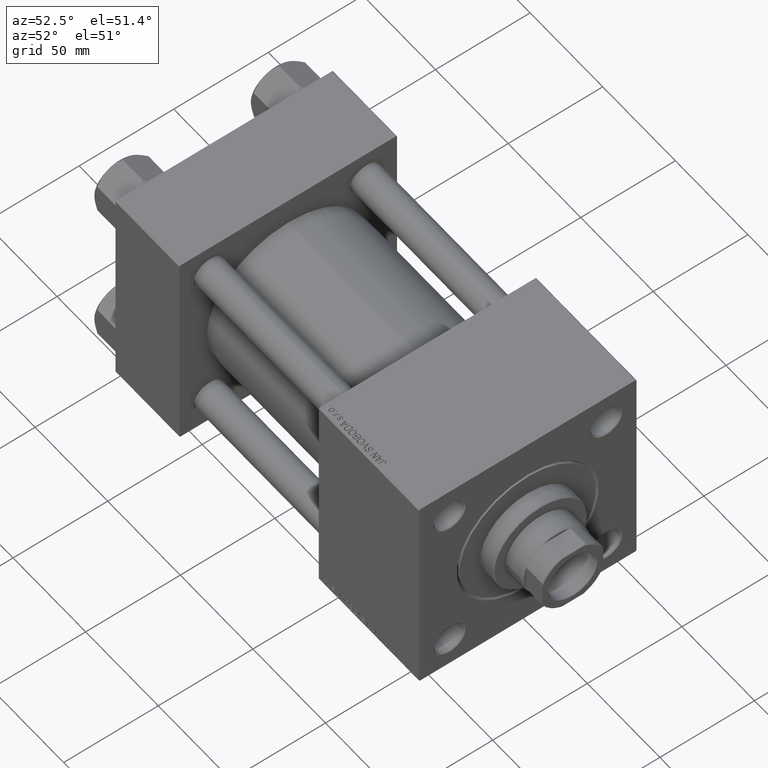
[diagram: clean part render]
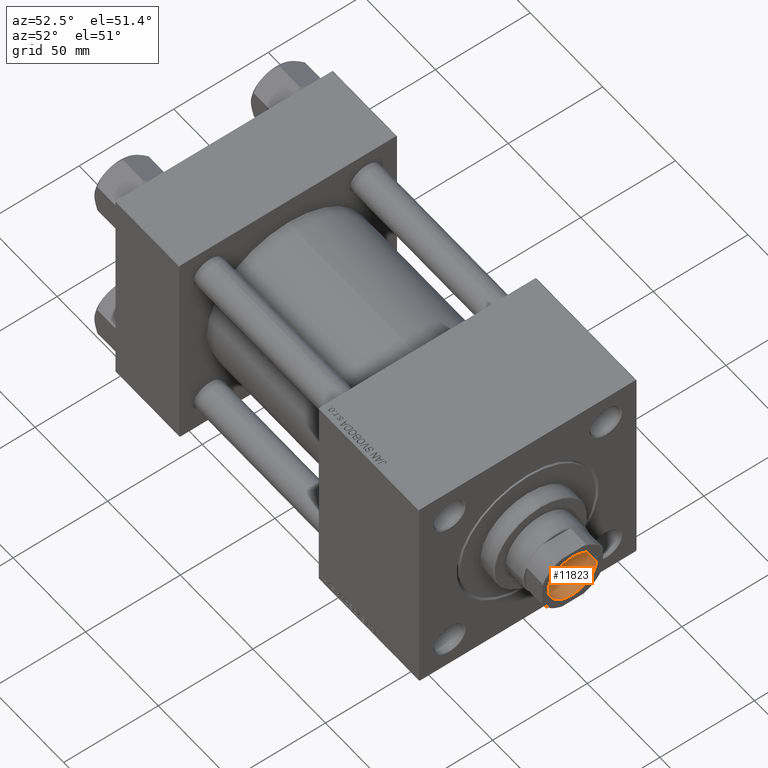
[diagram: same view with one face highlighted and labeled with its STEP entity id]
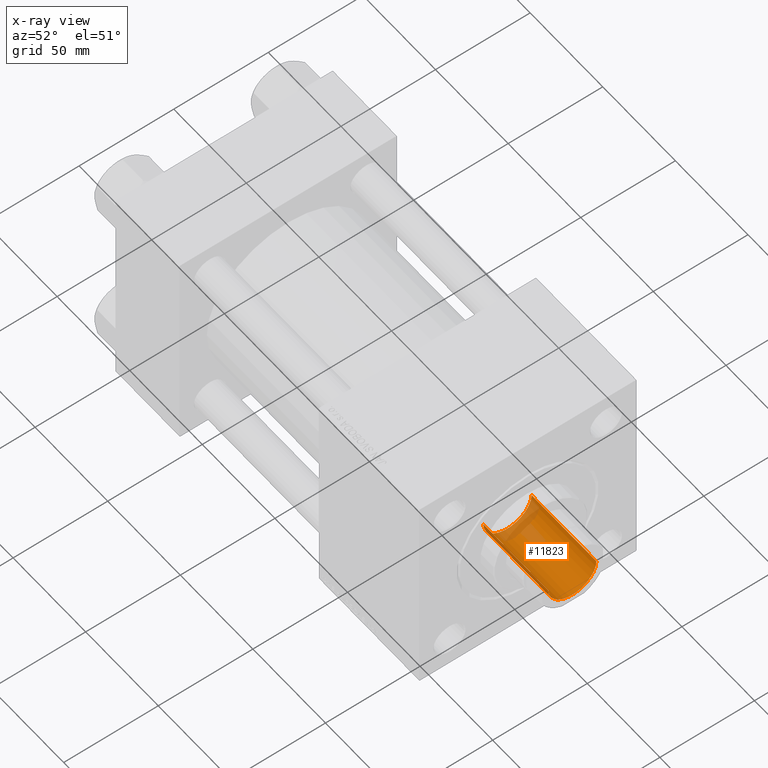
[diagram: x-ray of the same camera — body ghosted, the highlighted face saturated]
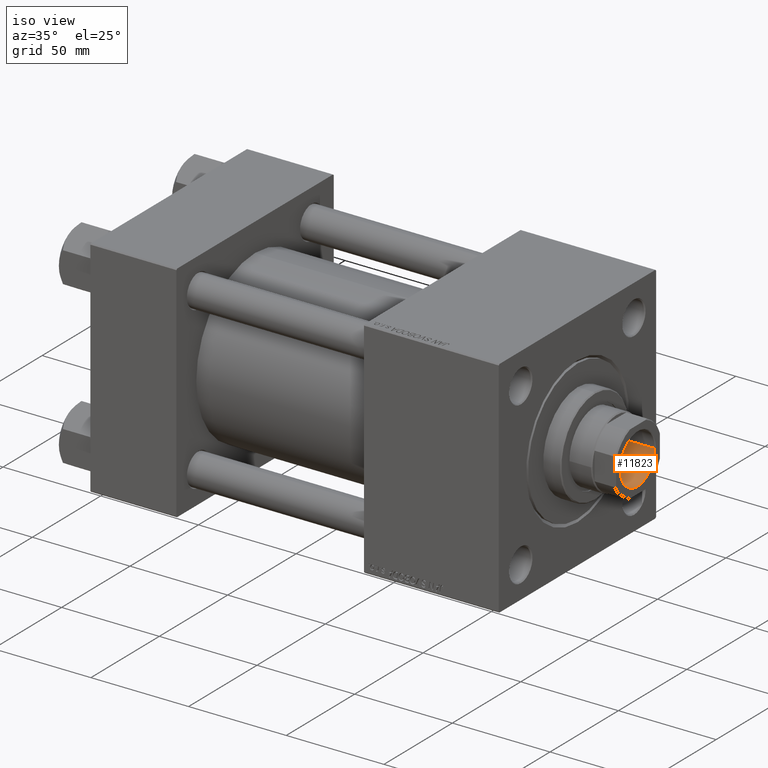
[diagram: same view with one face highlighted and labeled with its STEP entity id]
A machine part, auxiliary view. The second image highlights one B-rep face of the part: STEP entity #11823.
The next image is the same camera in x-ray: the body ghosted, the highlighted face saturated — about 16% of this face is hidden behind the body in this view.
A second angle (iso view) of the same face is appended — the face is thin or edge-on in the first view.
In plain terms, the highlighted cylindrical surface (edge-blend (fillet) strip) has radius 12.75 mm, axis along (1, 0, 0).
Its self-contained STEP definition (entity closure, byte-faithful):
#827 = CARTESIAN_POINT ( 'NONE',  ( 0.000000000000000000, 0.000000000000000000, 196.0000000000000000 ) ) ;
#1256 = EDGE_CURVE ( 'NONE', #29813, #37192, #6083, .T. ) ;
#1853 = DIRECTION ( 'NONE',  ( 1.000000000000000000, 0.000000000000000000, 0.000000000000000000 ) ) ;
#2782 = VECTOR ( 'NONE', #15731, 1000.000000000000000 ) ;
#3105 = DIRECTION ( 'NONE',  ( -0.000000000000000000, -0.000000000000000000, 1.000000000000000000 ) ) ;
#3683 = LINE ( 'NONE', #45923, #2782 ) ;
#3744 = AXIS2_PLACEMENT_3D ( 'NONE', #827, #32358, #1853 ) ;
#5583 = DIRECTION ( 'NONE',  ( -0.000000000000000000, -0.000000000000000000, 1.000000000000000000 ) ) ;
#6083 = LINE ( 'NONE', #14289, #12534 ) ;
#6811 = AXIS2_PLACEMENT_3D ( 'NONE', #25913, #3105, #42025 ) ;
#8372 = EDGE_CURVE ( 'NONE', #45743, #19572, #3683, .T. ) ;
#9634 = AXIS2_PLACEMENT_3D ( 'NONE', #18170, #49136, #25600 ) ;
#10747 = CARTESIAN_POINT ( 'NONE',  ( 12.74999999999998934, 0.000000000000000000, 151.0000000000000284 ) ) ;
#11823 = ADVANCED_FACE ( 'NONE', ( #13647 ), #32855, .F. ) ;
#12179 = ORIENTED_EDGE ( 'NONE', *, *, #8372, .T. ) ;
#12534 = VECTOR ( 'NONE', #5583, 1000.000000000000000 ) ;
#13647 = FACE_OUTER_BOUND ( 'NONE', #28206, .T. ) ;
#14289 = CARTESIAN_POINT ( 'NONE',  ( -12.74999999999999112, 1.561424668912874125E-15, 196.0000000000000000 ) ) ;
#15731 = DIRECTION ( 'NONE',  ( -0.000000000000000000, -0.000000000000000000, 1.000000000000000000 ) ) ;
#17017 = ORIENTED_EDGE ( 'NONE', *, *, #34947, .F. ) ;
#18170 = CARTESIAN_POINT ( 'NONE',  ( 0.000000000000000000, 0.000000000000000000, 195.6999999999999886 ) ) ;
#19572 = VERTEX_POINT ( 'NONE', #23061 ) ;
#20406 = EDGE_CURVE ( 'NONE', #19572, #37192, #44777, .T. ) ;
#23061 = CARTESIAN_POINT ( 'NONE',  ( 12.74999999999999112, 0.000000000000000000, 195.6999999999999886 ) ) ;
#25600 = DIRECTION ( 'NONE',  ( 1.000000000000000000, 0.000000000000000000, 0.000000000000000000 ) ) ;
#25913 = CARTESIAN_POINT ( 'NONE',  ( 0.000000000000000000, 0.000000000000000000, 151.0000000000000284 ) ) ;
#28206 = EDGE_LOOP ( 'NONE', ( #30338, #17017, #12179, #42877 ) ) ;
#29813 = VERTEX_POINT ( 'NONE', #47609 ) ;
#30338 = ORIENTED_EDGE ( 'NONE', *, *, #1256, .F. ) ;
#32358 = DIRECTION ( 'NONE',  ( -0.000000000000000000, -0.000000000000000000, 1.000000000000000000 ) ) ;
#32855 = CYLINDRICAL_SURFACE ( 'NONE', #3744, 12.74999999999999112 ) ;
#34947 = EDGE_CURVE ( 'NONE', #45743, #29813, #47686, .T. ) ;
#37192 = VERTEX_POINT ( 'NONE', #43683 ) ;
#42025 = DIRECTION ( 'NONE',  ( 1.000000000000000000, 0.000000000000000000, 0.000000000000000000 ) ) ;
#42877 = ORIENTED_EDGE ( 'NONE', *, *, #20406, .T. ) ;
#43683 = CARTESIAN_POINT ( 'NONE',  ( -12.74999999999999112, 1.561424668912874125E-15, 195.6999999999999886 ) ) ;
#44777 = CIRCLE ( 'NONE', #9634, 12.74999999999999112 ) ;
#45743 = VERTEX_POINT ( 'NONE', #10747 ) ;
#45923 = CARTESIAN_POINT ( 'NONE',  ( 12.74999999999999112, 0.000000000000000000, 196.0000000000000000 ) ) ;
#47609 = CARTESIAN_POINT ( 'NONE',  ( -12.74999999999998934, 1.561424668912873928E-15, 151.0000000000000284 ) ) ;
#47686 = CIRCLE ( 'NONE', #6811, 12.74999999999998934 ) ;
#49136 = DIRECTION ( 'NONE',  ( 0.000000000000000000, 0.000000000000000000, 1.000000000000000000 ) ) ;